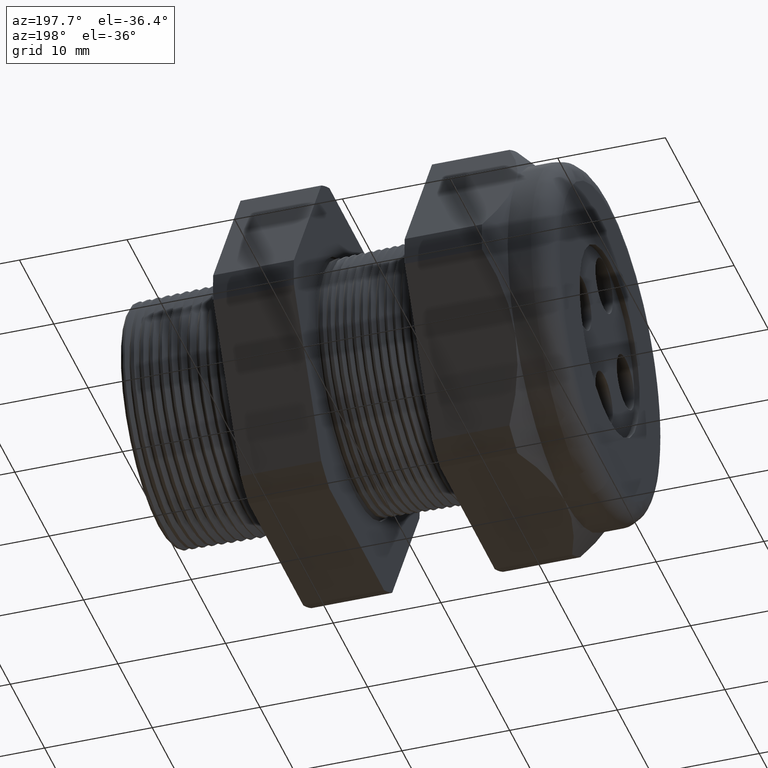
[diagram: clean part render]
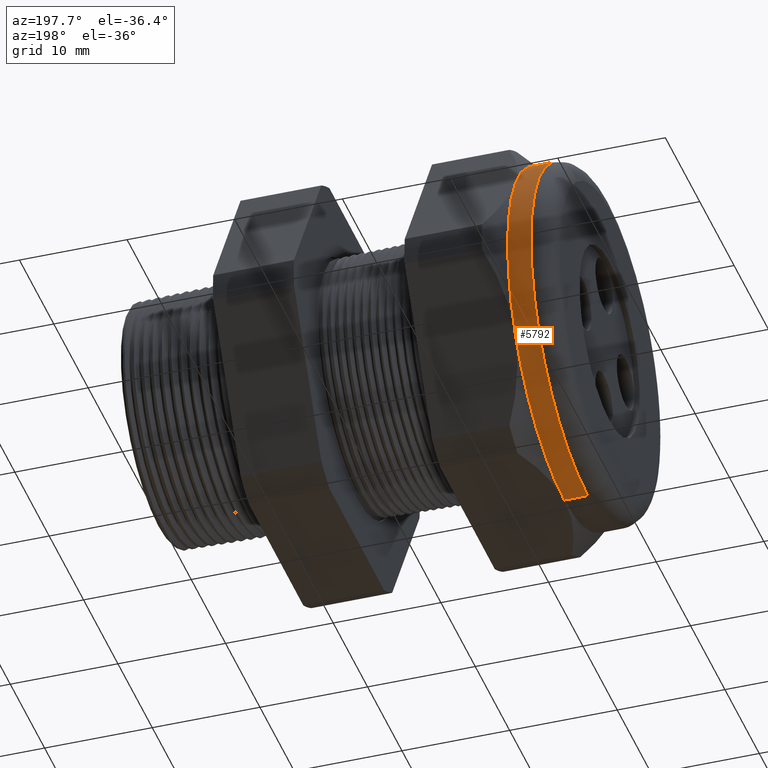
[diagram: same view with one face highlighted and labeled with its STEP entity id]
A machine part, auxiliary view. The second image highlights one B-rep face of the part: STEP entity #5792.
In plain terms, the highlighted cylindrical surface (partial cylindrical patch) has radius 16.51 mm, axis along (1, 0, 0).
Its self-contained STEP definition (entity closure, byte-faithful):
#1 = VERTEX_POINT ( 'NONE', #3145 ) ;
#2 = ORIENTED_EDGE ( 'NONE', *, *, #10, .F. ) ;
#10 = EDGE_CURVE ( 'NONE', #1340, #1, #3193, .T. ) ;
#15 = ORIENTED_EDGE ( 'NONE', *, *, #19, .F. ) ;
#19 = EDGE_CURVE ( 'NONE', #1, #5755, #3241, .T. ) ;
#1036 = DIRECTION ( 'NONE',  ( 0.0000000000000000000, 0.0000000000000000000, -1.000000000000000000 ) ) ;
#1037 = DIRECTION ( 'NONE',  ( 1.000000000000000000, 0.0000000000000000000, 0.0000000000000000000 ) ) ;
#1038 = CARTESIAN_POINT ( 'NONE',  ( -1.364645669291338200, 0.0000000000000000000, 0.0000000000000000000 ) ) ;
#1039 = AXIS2_PLACEMENT_3D ( 'NONE', #1038, #1037, #1036 ) ;
#1040 = CIRCLE ( 'NONE', #1039, 0.6499999999999999100 ) ;
#1045 = CARTESIAN_POINT ( 'NONE',  ( -1.364645669291338500, 0.5629165124598856100, 0.3250000000000002300 ) ) ;
#1066 = DIRECTION ( 'NONE',  ( 0.0000000000000000000, 0.0000000000000000000, -1.000000000000000000 ) ) ;
#1067 = DIRECTION ( 'NONE',  ( 1.000000000000000000, 0.0000000000000000000, 0.0000000000000000000 ) ) ;
#1068 = CARTESIAN_POINT ( 'NONE',  ( -1.364645669291338200, 0.0000000000000000000, 0.0000000000000000000 ) ) ;
#1069 = AXIS2_PLACEMENT_3D ( 'NONE', #1068, #1067, #1066 ) ;
#1070 = CIRCLE ( 'NONE', #1069, 0.6499999999999999100 ) ;
#1071 = DIRECTION ( 'NONE',  ( 1.000000000000000000, 0.0000000000000000000, 0.0000000000000000000 ) ) ;
#1072 = VECTOR ( 'NONE', #1071, 39.37007874015748100 ) ;
#1073 = CARTESIAN_POINT ( 'NONE',  ( 0.0000000000000000000, 7.960204194457794200E-017, 0.6499999999999999100 ) ) ;
#1074 = LINE ( 'NONE', #1073, #1072 ) ;
#1079 = CARTESIAN_POINT ( 'NONE',  ( -1.364645669291338500, 0.0000000000000000000, 0.6499999999999999100 ) ) ;
#1104 = CARTESIAN_POINT ( 'NONE',  ( -1.364645669291338500, 0.5629165124598853900, -0.3249999999999999000 ) ) ;
#1155 = DIRECTION ( 'NONE',  ( 0.0000000000000000000, 0.0000000000000000000, -1.000000000000000000 ) ) ;
#1156 = DIRECTION ( 'NONE',  ( 1.000000000000000000, 0.0000000000000000000, 0.0000000000000000000 ) ) ;
#1157 = CARTESIAN_POINT ( 'NONE',  ( 0.0000000000000000000, 0.0000000000000000000, 0.0000000000000000000 ) ) ;
#1158 = AXIS2_PLACEMENT_3D ( 'NONE', #1157, #1156, #1155 ) ;
#1159 = CYLINDRICAL_SURFACE ( 'NONE', #1158, 0.6499999999999999100 ) ;
#1160 = FACE_OUTER_BOUND ( 'NONE', #5789, .T. ) ;
#1340 = VERTEX_POINT ( 'NONE', #3368 ) ;
#1612 = VERTEX_POINT ( 'NONE', #3853 ) ;
#1641 = EDGE_CURVE ( 'NONE', #1340, #1612, #3856, .T. ) ;
#3145 = CARTESIAN_POINT ( 'NONE',  ( -1.364645669291338500, 0.0000000000000000000, -0.6500000000000001300 ) ) ;
#3178 = CARTESIAN_POINT ( 'NONE',  ( -1.364645669291338200, 0.0000000000000000000, 0.0000000000000000000 ) ) ;
#3187 = DIRECTION ( 'NONE',  ( 1.000000000000000000, 0.0000000000000000000, 0.0000000000000000000 ) ) ;
#3188 = VECTOR ( 'NONE', #3187, 39.37007874015748100 ) ;
#3189 = CARTESIAN_POINT ( 'NONE',  ( 0.0000000000000000000, 0.0000000000000000000, -0.6499999999999999100 ) ) ;
#3193 = LINE ( 'NONE', #3189, #3188 ) ;
#3238 = DIRECTION ( 'NONE',  ( 0.0000000000000000000, 0.0000000000000000000, -1.000000000000000000 ) ) ;
#3239 = DIRECTION ( 'NONE',  ( 1.000000000000000000, 0.0000000000000000000, 0.0000000000000000000 ) ) ;
#3240 = AXIS2_PLACEMENT_3D ( 'NONE', #3178, #3239, #3238 ) ;
#3241 = CIRCLE ( 'NONE', #3240, 0.6499999999999999100 ) ;
#3368 = CARTESIAN_POINT ( 'NONE',  ( -1.449999999999999700, 0.0000000000000000000, -0.6499999999999999100 ) ) ;
#3853 = CARTESIAN_POINT ( 'NONE',  ( -1.449999999999999700, 7.960204194457794200E-017, 0.6499999999999999100 ) ) ;
#3854 = CARTESIAN_POINT ( 'NONE',  ( -1.449999999999999700, 0.0000000000000000000, 0.0000000000000000000 ) ) ;
#3855 = AXIS2_PLACEMENT_3D ( 'NONE', #3854, #3917, #3916 ) ;
#3856 = CIRCLE ( 'NONE', #3855, 0.6499999999999999100 ) ;
#3916 = DIRECTION ( 'NONE',  ( 0.0000000000000000000, 0.0000000000000000000, 1.000000000000000000 ) ) ;
#3917 = DIRECTION ( 'NONE',  ( 1.000000000000000000, 0.0000000000000000000, 0.0000000000000000000 ) ) ;
#5718 = VERTEX_POINT ( 'NONE', #1045 ) ;
#5719 = EDGE_CURVE ( 'NONE', #5718, #5736, #1040, .T. ) ;
#5721 = ORIENTED_EDGE ( 'NONE', *, *, #5719, .F. ) ;
#5736 = VERTEX_POINT ( 'NONE', #1079 ) ;
#5738 = EDGE_CURVE ( 'NONE', #1612, #5736, #1074, .T. ) ;
#5739 = EDGE_CURVE ( 'NONE', #5755, #5718, #1070, .T. ) ;
#5746 = ORIENTED_EDGE ( 'NONE', *, *, #5739, .F. ) ;
#5751 = ORIENTED_EDGE ( 'NONE', *, *, #5738, .T. ) ;
#5755 = VERTEX_POINT ( 'NONE', #1104 ) ;
#5778 = ORIENTED_EDGE ( 'NONE', *, *, #1641, .T. ) ;
#5789 = EDGE_LOOP ( 'NONE', ( #5778, #5751, #5721, #5746, #15, #2 ) ) ;
#5792 = ADVANCED_FACE ( 'NONE', ( #1160 ), #1159, .T. ) ;